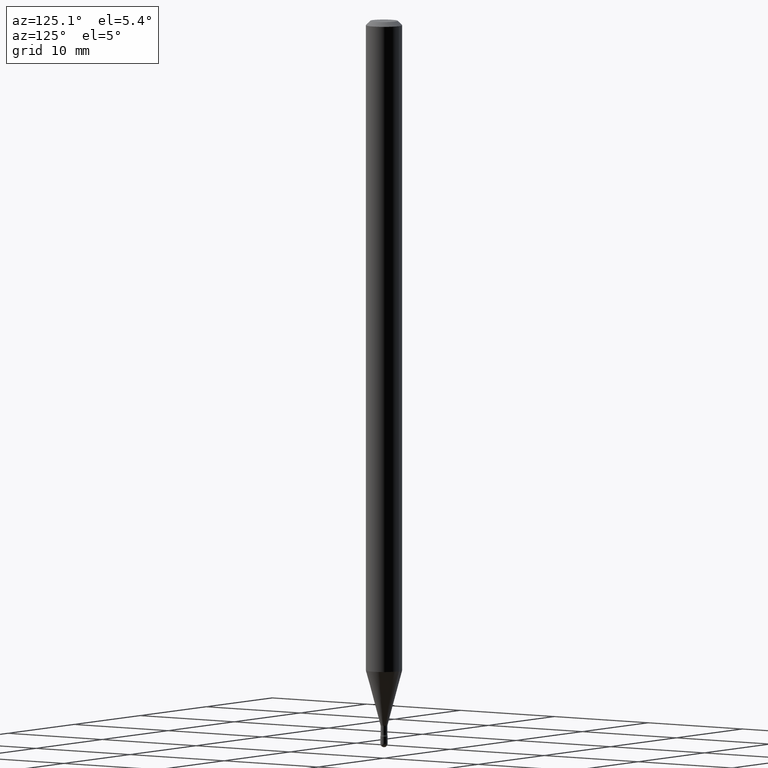
[diagram: clean part render]
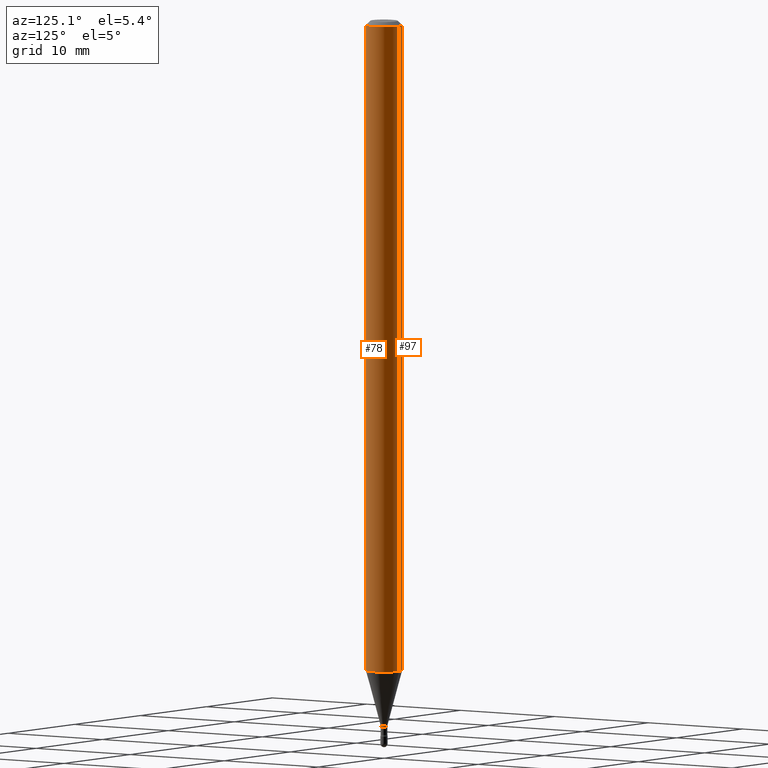
[diagram: same view with one multi-face feature highlighted, each face labeled with its STEP entity id]
A machine part, auxiliary view. The highlighted faces form ONE feature: a constant-radius fillet chain: 2 tangent blend faces with common blend radius 1.5875 mm. The faces share edges in the B-rep.
Their STEP definitions:
[1] entity #97 (Cylinder):
#4 = EDGE_CURVE ( 'NONE', #223, #219, #300, .T. ) ;
#43 = AXIS2_PLACEMENT_3D ( 'NONE', #513, #255, #563 ) ;
#46 = DIRECTION ( 'NONE',  ( -6.982962677686265922E-15, -1.000000000000000000, 4.370956789862821150E-15 ) ) ;
#72 = ORIENTED_EDGE ( 'NONE', *, *, #412, .F. ) ;
#89 = ORIENTED_EDGE ( 'NONE', *, *, #404, .T. ) ;
#97 = ADVANCED_FACE ( 'NONE', ( #320 ), #187, .T. ) ;
#100 = AXIS2_PLACEMENT_3D ( 'NONE', #172, #436, #46 ) ;
#172 = CARTESIAN_POINT ( 'NONE',  ( 5.467081872275488067E-29, -7.805556371676380338E-15, -2.235598421515879952 ) ) ;
#173 = DIRECTION ( 'NONE',  ( -2.445466869031180118E-29, 3.491484112957866837E-15, 1.000000000000000000 ) ) ;
#187 = CYLINDRICAL_SURFACE ( 'NONE', #374, 0.06250000000000000000 ) ;
#201 = VERTEX_POINT ( 'NONE', #248 ) ;
#219 = VERTEX_POINT ( 'NONE', #238 ) ;
#223 = VERTEX_POINT ( 'NONE', #510 ) ;
#232 = DIRECTION ( 'NONE',  ( -6.982962677686265922E-15, -1.000000000000000000, 3.491484112957866443E-15 ) ) ;
#238 = CARTESIAN_POINT ( 'NONE',  ( -4.364351673553370901E-16, -0.06250000000000781319, -2.235598421515879952 ) ) ;
#243 = EDGE_LOOP ( 'NONE', ( #72, #565, #89, #508 ) ) ;
#248 = CARTESIAN_POINT ( 'NONE',  ( 4.440892098501175406E-16, 0.06249999999999995143, -0.01500000000000030129 ) ) ;
#252 = VECTOR ( 'NONE', #173, 39.37007874015748143 ) ;
#255 = DIRECTION ( 'NONE',  ( -2.445466869031180399E-29, 3.491484112957866837E-15, 1.000000000000000000 ) ) ;
#282 = CIRCLE ( 'NONE', #43, 0.06250000000000000000 ) ;
#292 = VERTEX_POINT ( 'NONE', #503 ) ;
#300 = CIRCLE ( 'NONE', #100, 0.06250000000000000000 ) ;
#304 = LINE ( 'NONE', #433, #252 ) ;
#315 = EDGE_CURVE ( 'NONE', #201, #292, #282, .T. ) ;
#320 = FACE_OUTER_BOUND ( 'NONE', #243, .T. ) ;
#362 = DIRECTION ( 'NONE',  ( -2.445466869031180399E-29, 3.491484112957866837E-15, 1.000000000000000000 ) ) ;
#374 = AXIS2_PLACEMENT_3D ( 'NONE', #495, #362, #232 ) ;
#381 = LINE ( 'NONE', #393, #559 ) ;
#393 = CARTESIAN_POINT ( 'NONE',  ( -4.364351673553916201E-16, -0.06250000000000000000, 6.962911559511127405E-16 ) ) ;
#404 = EDGE_CURVE ( 'NONE', #219, #292, #381, .T. ) ;
#412 = EDGE_CURVE ( 'NONE', #223, #201, #304, .T. ) ;
#433 = CARTESIAN_POINT ( 'NONE',  ( 4.440892098500625669E-16, 0.06250000000000000000, 2.598556418313793859E-16 ) ) ;
#436 = DIRECTION ( 'NONE',  ( -2.445466869031180399E-29, 3.491484112957866837E-15, 1.000000000000000000 ) ) ;
#495 = CARTESIAN_POINT ( 'NONE',  ( -1.169113584055446105E-44, 1.669184350826100908E-30, 4.780733988912460139E-16 ) ) ;
#503 = CARTESIAN_POINT ( 'NONE',  ( -4.364351673553912750E-16, -0.06250000000000005551, -0.01499999999999986587 ) ) ;
#508 = ORIENTED_EDGE ( 'NONE', *, *, #315, .F. ) ;
#510 = CARTESIAN_POINT ( 'NONE',  ( 4.440892098501171462E-16, 0.06249999999999219374, -2.235598421515880396 ) ) ;
#513 = CARTESIAN_POINT ( 'NONE',  ( 3.668200303546790742E-31, -5.237226169436829443E-17, -0.01500000000000008271 ) ) ;
#559 = VECTOR ( 'NONE', #566, 39.37007874015748143 ) ;
#563 = DIRECTION ( 'NONE',  ( -6.982962677686265922E-15, -1.000000000000000000, 3.483106191921935554E-15 ) ) ;
#565 = ORIENTED_EDGE ( 'NONE', *, *, #4, .T. ) ;
#566 = DIRECTION ( 'NONE',  ( -2.445466869031180118E-29, 3.491484112957866837E-15, 1.000000000000000000 ) ) ;
[2] entity #78 (Cylinder):
#14 = EDGE_CURVE ( 'NONE', #219, #223, #458, .T. ) ;
#27 = ORIENTED_EDGE ( 'NONE', *, *, #440, .F. ) ;
#56 = FACE_OUTER_BOUND ( 'NONE', #477, .T. ) ;
#78 = ADVANCED_FACE ( 'NONE', ( #56 ), #150, .T. ) ;
#84 = ORIENTED_EDGE ( 'NONE', *, *, #404, .F. ) ;
#105 = DIRECTION ( 'NONE',  ( -2.445466869031180399E-29, 3.491484112957866837E-15, 1.000000000000000000 ) ) ;
#150 = CYLINDRICAL_SURFACE ( 'NONE', #467, 0.06250000000000000000 ) ;
#156 = CIRCLE ( 'NONE', #234, 0.06250000000000000000 ) ;
#166 = CARTESIAN_POINT ( 'NONE',  ( 3.668200303546790742E-31, -5.237226169436829443E-17, -0.01500000000000008271 ) ) ;
#173 = DIRECTION ( 'NONE',  ( -2.445466869031180118E-29, 3.491484112957866837E-15, 1.000000000000000000 ) ) ;
#201 = VERTEX_POINT ( 'NONE', #248 ) ;
#218 = CARTESIAN_POINT ( 'NONE',  ( 5.467081872275488067E-29, -7.805556371676380338E-15, -2.235598421515879952 ) ) ;
#219 = VERTEX_POINT ( 'NONE', #238 ) ;
#223 = VERTEX_POINT ( 'NONE', #510 ) ;
#234 = AXIS2_PLACEMENT_3D ( 'NONE', #166, #339, #515 ) ;
#238 = CARTESIAN_POINT ( 'NONE',  ( -4.364351673553370901E-16, -0.06250000000000781319, -2.235598421515879952 ) ) ;
#248 = CARTESIAN_POINT ( 'NONE',  ( 4.440892098501175406E-16, 0.06249999999999995143, -0.01500000000000030129 ) ) ;
#252 = VECTOR ( 'NONE', #173, 39.37007874015748143 ) ;
#292 = VERTEX_POINT ( 'NONE', #503 ) ;
#304 = LINE ( 'NONE', #433, #252 ) ;
#305 = DIRECTION ( 'NONE',  ( -6.982962677686265922E-15, -1.000000000000000000, 3.491484112957866443E-15 ) ) ;
#339 = DIRECTION ( 'NONE',  ( -2.445466869031180399E-29, 3.491484112957866837E-15, 1.000000000000000000 ) ) ;
#379 = ORIENTED_EDGE ( 'NONE', *, *, #412, .T. ) ;
#381 = LINE ( 'NONE', #393, #559 ) ;
#385 = AXIS2_PLACEMENT_3D ( 'NONE', #218, #391, #556 ) ;
#391 = DIRECTION ( 'NONE',  ( -2.445466869031180399E-29, 3.491484112957866837E-15, 1.000000000000000000 ) ) ;
#393 = CARTESIAN_POINT ( 'NONE',  ( -4.364351673553916201E-16, -0.06250000000000000000, 6.962911559511127405E-16 ) ) ;
#404 = EDGE_CURVE ( 'NONE', #219, #292, #381, .T. ) ;
#412 = EDGE_CURVE ( 'NONE', #223, #201, #304, .T. ) ;
#433 = CARTESIAN_POINT ( 'NONE',  ( 4.440892098500625669E-16, 0.06250000000000000000, 2.598556418313793859E-16 ) ) ;
#440 = EDGE_CURVE ( 'NONE', #292, #201, #156, .T. ) ;
#452 = CARTESIAN_POINT ( 'NONE',  ( -1.169113584055446105E-44, 1.669184350826100908E-30, 4.780733988912460139E-16 ) ) ;
#458 = CIRCLE ( 'NONE', #385, 0.06250000000000000000 ) ;
#467 = AXIS2_PLACEMENT_3D ( 'NONE', #452, #105, #305 ) ;
#477 = EDGE_LOOP ( 'NONE', ( #522, #379, #27, #84 ) ) ;
#503 = CARTESIAN_POINT ( 'NONE',  ( -4.364351673553912750E-16, -0.06250000000000005551, -0.01499999999999986587 ) ) ;
#510 = CARTESIAN_POINT ( 'NONE',  ( 4.440892098501171462E-16, 0.06249999999999219374, -2.235598421515880396 ) ) ;
#515 = DIRECTION ( 'NONE',  ( -6.982962677686265922E-15, -1.000000000000000000, 3.483106191921935554E-15 ) ) ;
#522 = ORIENTED_EDGE ( 'NONE', *, *, #14, .T. ) ;
#556 = DIRECTION ( 'NONE',  ( -6.982962677686265922E-15, -1.000000000000000000, 4.370956789862821150E-15 ) ) ;
#559 = VECTOR ( 'NONE', #566, 39.37007874015748143 ) ;
#566 = DIRECTION ( 'NONE',  ( -2.445466869031180118E-29, 3.491484112957866837E-15, 1.000000000000000000 ) ) ;